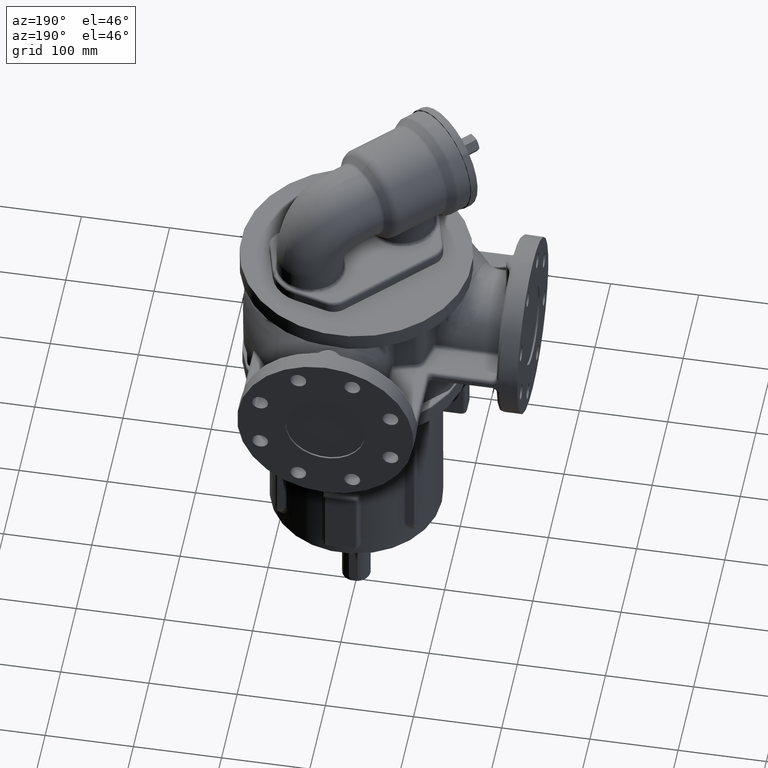
[diagram: clean part render]
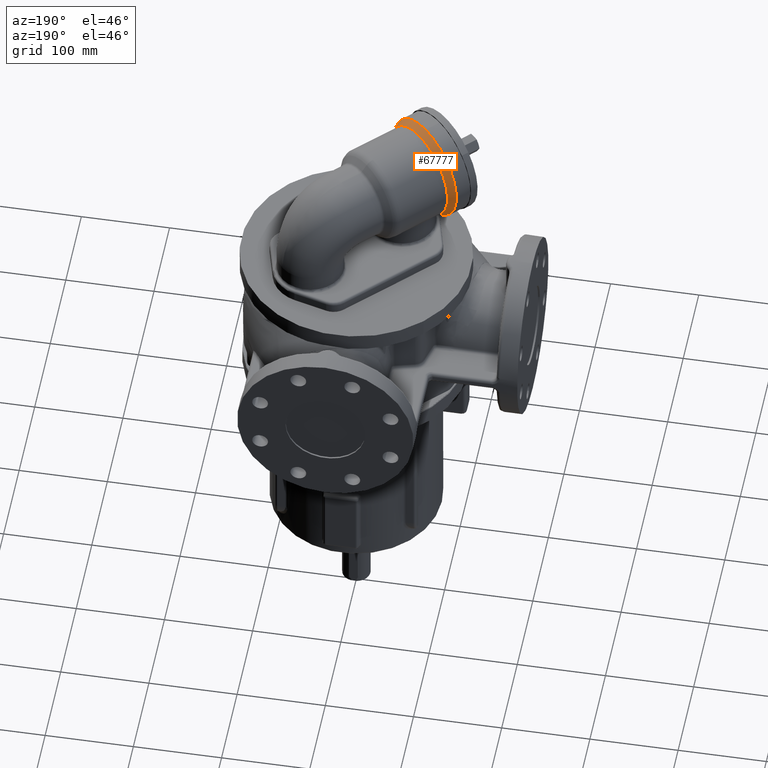
[diagram: same view with one face highlighted and labeled with its STEP entity id]
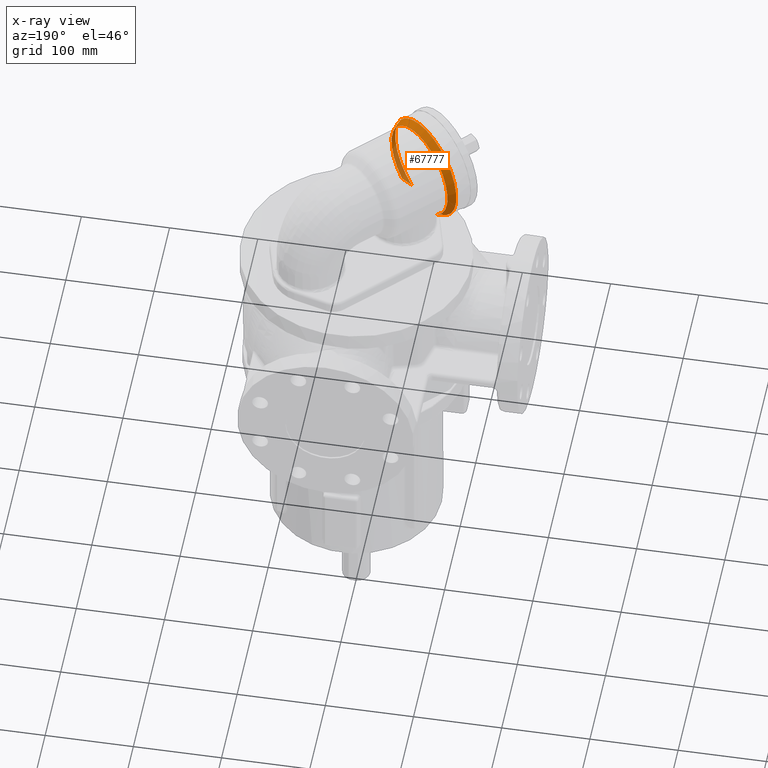
[diagram: x-ray of the same camera — body ghosted, the highlighted face saturated]
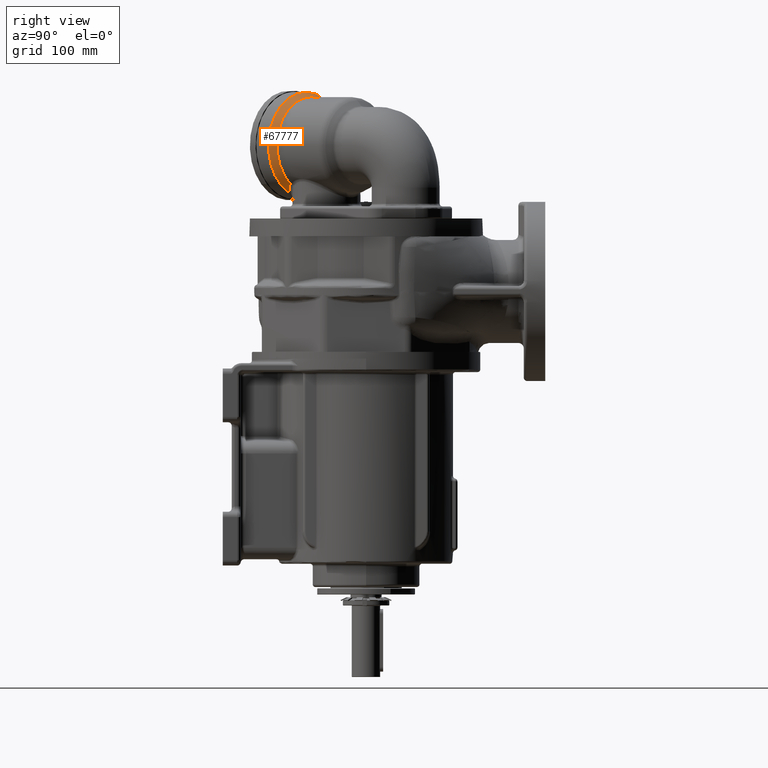
[diagram: same view with one face highlighted and labeled with its STEP entity id]
A machine part, auxiliary view. The second image highlights one B-rep face of the part: STEP entity #67777.
The next image is the same camera in x-ray: the body ghosted, the highlighted face saturated — about 15% of this face is hidden behind the body in this view.
A second angle (right view) of the same face is appended — the face is thin or edge-on in the first view.
In plain terms, the highlighted conical surface has half-angle 30 deg.
Its self-contained STEP definition (entity closure, byte-faithful):
#15769=CARTESIAN_POINT('',(-6.083656717341E1,-6.083656717341E1,2.39E2));
#15770=DIRECTION('',(-7.071067811865E-1,-7.071067811865E-1,0.E0));
#15771=DIRECTION('',(4.396053184643E-1,-4.396053184643E-1,-7.832587873467E-1));
#15772=AXIS2_PLACEMENT_3D('',#15769,#15770,#15771);
#16156=CARTESIAN_POINT('',(-3.686229619620E1,-8.481083815063E1,
1.962842783642E2));
#16157=CARTESIAN_POINT('',(-3.722158954197E1,-8.491811649846E1,
1.958996491584E2));
#16158=CARTESIAN_POINT('',(-3.793913467609E1,-8.512141042833E1,
1.951411409149E2));
#16159=CARTESIAN_POINT('',(-3.901064028265E1,-8.539311499214E1,
1.940362614741E2));
#16160=CARTESIAN_POINT('',(-4.007631532631E1,-8.563236238825E1,
1.929642003528E2));
#16161=CARTESIAN_POINT('',(-4.113494486451E1,-8.583990964062E1,
1.919251112177E2));
#16162=CARTESIAN_POINT('',(-4.218536884895E1,-8.601656702120E1,
1.909190883205E2));
#16163=CARTESIAN_POINT('',(-4.322661709621E1,-8.616320918207E1,
1.899460444012E2));
#16164=CARTESIAN_POINT('',(-4.425788973186E1,-8.628074555617E1,
1.890057462223E2));
#16165=CARTESIAN_POINT('',(-4.527814122422E1,-8.637007434826E1,
1.880981907367E2));
#16166=CARTESIAN_POINT('',(-4.628660196019E1,-8.643215158111E1,
1.872231166865E2));
#16167=CARTESIAN_POINT('',(-4.695101739500E1,-8.645601883944E1,
1.866608213795E2));
#16168=CARTESIAN_POINT('',(-4.728099262417E1,-8.646372498557E1,
1.863850199730E2));
#16170=CARTESIAN_POINT('',(-8.646372498556E1,-4.728099262417E1,
1.863850199730E2));
#16171=CARTESIAN_POINT('',(-8.645601891546E1,-4.695102039110E1,
1.866608188725E2));
#16172=CARTESIAN_POINT('',(-8.643215180461E1,-4.628660659612E1,
1.872231127185E2));
#16173=CARTESIAN_POINT('',(-8.637007425967E1,-4.527813895071E1,
1.880981925825E2));
#16174=CARTESIAN_POINT('',(-8.628074291453E1,-4.425786218770E1,
1.890057709532E2));
#16175=CARTESIAN_POINT('',(-8.616320678358E1,-4.322659836181E1,
1.899460617829E2));
#16176=CARTESIAN_POINT('',(-8.601656473118E1,-4.218535421870E1,
1.909191021627E2));
#16177=CARTESIAN_POINT('',(-8.583990676681E1,-4.113492930245E1,
1.919251262905E2));
#16178=CARTESIAN_POINT('',(-8.563235906671E1,-4.007629979570E1,
1.929642158317E2));
#16179=CARTESIAN_POINT('',(-8.539311399487E1,-3.901063632964E1,
1.940362656179E2));
#16180=CARTESIAN_POINT('',(-8.512141200530E1,-3.793914076048E1,
1.951411345921E2));
#16181=CARTESIAN_POINT('',(-8.491811741427E1,-3.722159259617E1,
1.958996458881E2));
#16182=CARTESIAN_POINT('',(-8.481083815063E1,-3.686229619620E1,
1.962842783642E2));
#16220=CARTESIAN_POINT('',(-8.646372498556E1,-4.728099262417E1,
1.863850199730E2));
#16222=CARTESIAN_POINT('',(-6.687235880487E1,-6.687235880487E1,2.39E2));
#16223=DIRECTION('',(7.071067811865E-1,7.071067811865E-1,0.E0));
#16224=DIRECTION('',(-3.294654362643E-1,3.294654362643E-1,-8.848192203011E-1));
#16225=AXIS2_PLACEMENT_3D('',#16222,#16223,#16224);
#23306=CARTESIAN_POINT('',(-3.686229619620E1,-8.481083815063E1,
1.962842783642E2));
#23307=VERTEX_POINT('',#23306);
#23308=VERTEX_POINT('',#16168);
#23316=VERTEX_POINT('',#16220);
#23318=VERTEX_POINT('',#16182);
#67764=CARTESIAN_POINT('',(-6.385446298914E1,-6.385446298914E1,2.39E2));
#67765=DIRECTION('',(-7.071067811865E-1,-7.071067811865E-1,0.E0));
#67766=DIRECTION('',(0.E0,0.E0,-1.E0));
#67767=AXIS2_PLACEMENT_3D('',#67764,#67765,#67766);
#67768=CONICAL_SURFACE('',#67767,5.7E1,3.E1);
#67770=ORIENTED_EDGE('',*,*,#67769,.T.);
#67772=ORIENTED_EDGE('',*,*,#67771,.F.);
#67773=ORIENTED_EDGE('',*,*,#67755,.T.);
#67774=ORIENTED_EDGE('',*,*,#67062,.F.);
#67775=EDGE_LOOP('',(#67770,#67772,#67773,#67774));
#67776=FACE_OUTER_BOUND('',#67775,.F.);
#67777=ADVANCED_FACE('',(#67776),#67768,.T.);
#15773=CIRCLE('',#15772,5.453589838486E1);
#16169=B_SPLINE_CURVE_WITH_KNOTS('',3,(#16156,#16157,#16158,#16159,#16160,
#16161,#16162,#16163,#16164,#16165,#16166,#16167,#16168),.UNSPECIFIED.,.F.,.F.,(
4,1,1,1,1,1,1,1,1,1,4),(0.E0,1.E-1,2.E-1,3.E-1,4.E-1,5.E-1,6.E-1,7.E-1,8.E-1,
9.E-1,1.E0),.UNSPECIFIED.);
#16183=B_SPLINE_CURVE_WITH_KNOTS('',3,(#16170,#16171,#16172,#16173,#16174,
#16175,#16176,#16177,#16178,#16179,#16180,#16181,#16182),.UNSPECIFIED.,.F.,.F.,(
4,1,1,1,1,1,1,1,1,1,4),(0.E0,1.E-1,2.E-1,3.E-1,4.E-1,5.E-1,6.E-1,7.E-1,8.E-1,
9.E-1,1.E0),.UNSPECIFIED.);
#16226=CIRCLE('',#16225,5.946410161514E1);
#67062=EDGE_CURVE('',#23307,#23318,#15773,.T.);
#67755=EDGE_CURVE('',#23316,#23318,#16183,.T.);
#67769=EDGE_CURVE('',#23307,#23308,#16169,.T.);
#67771=EDGE_CURVE('',#23316,#23308,#16226,.T.);